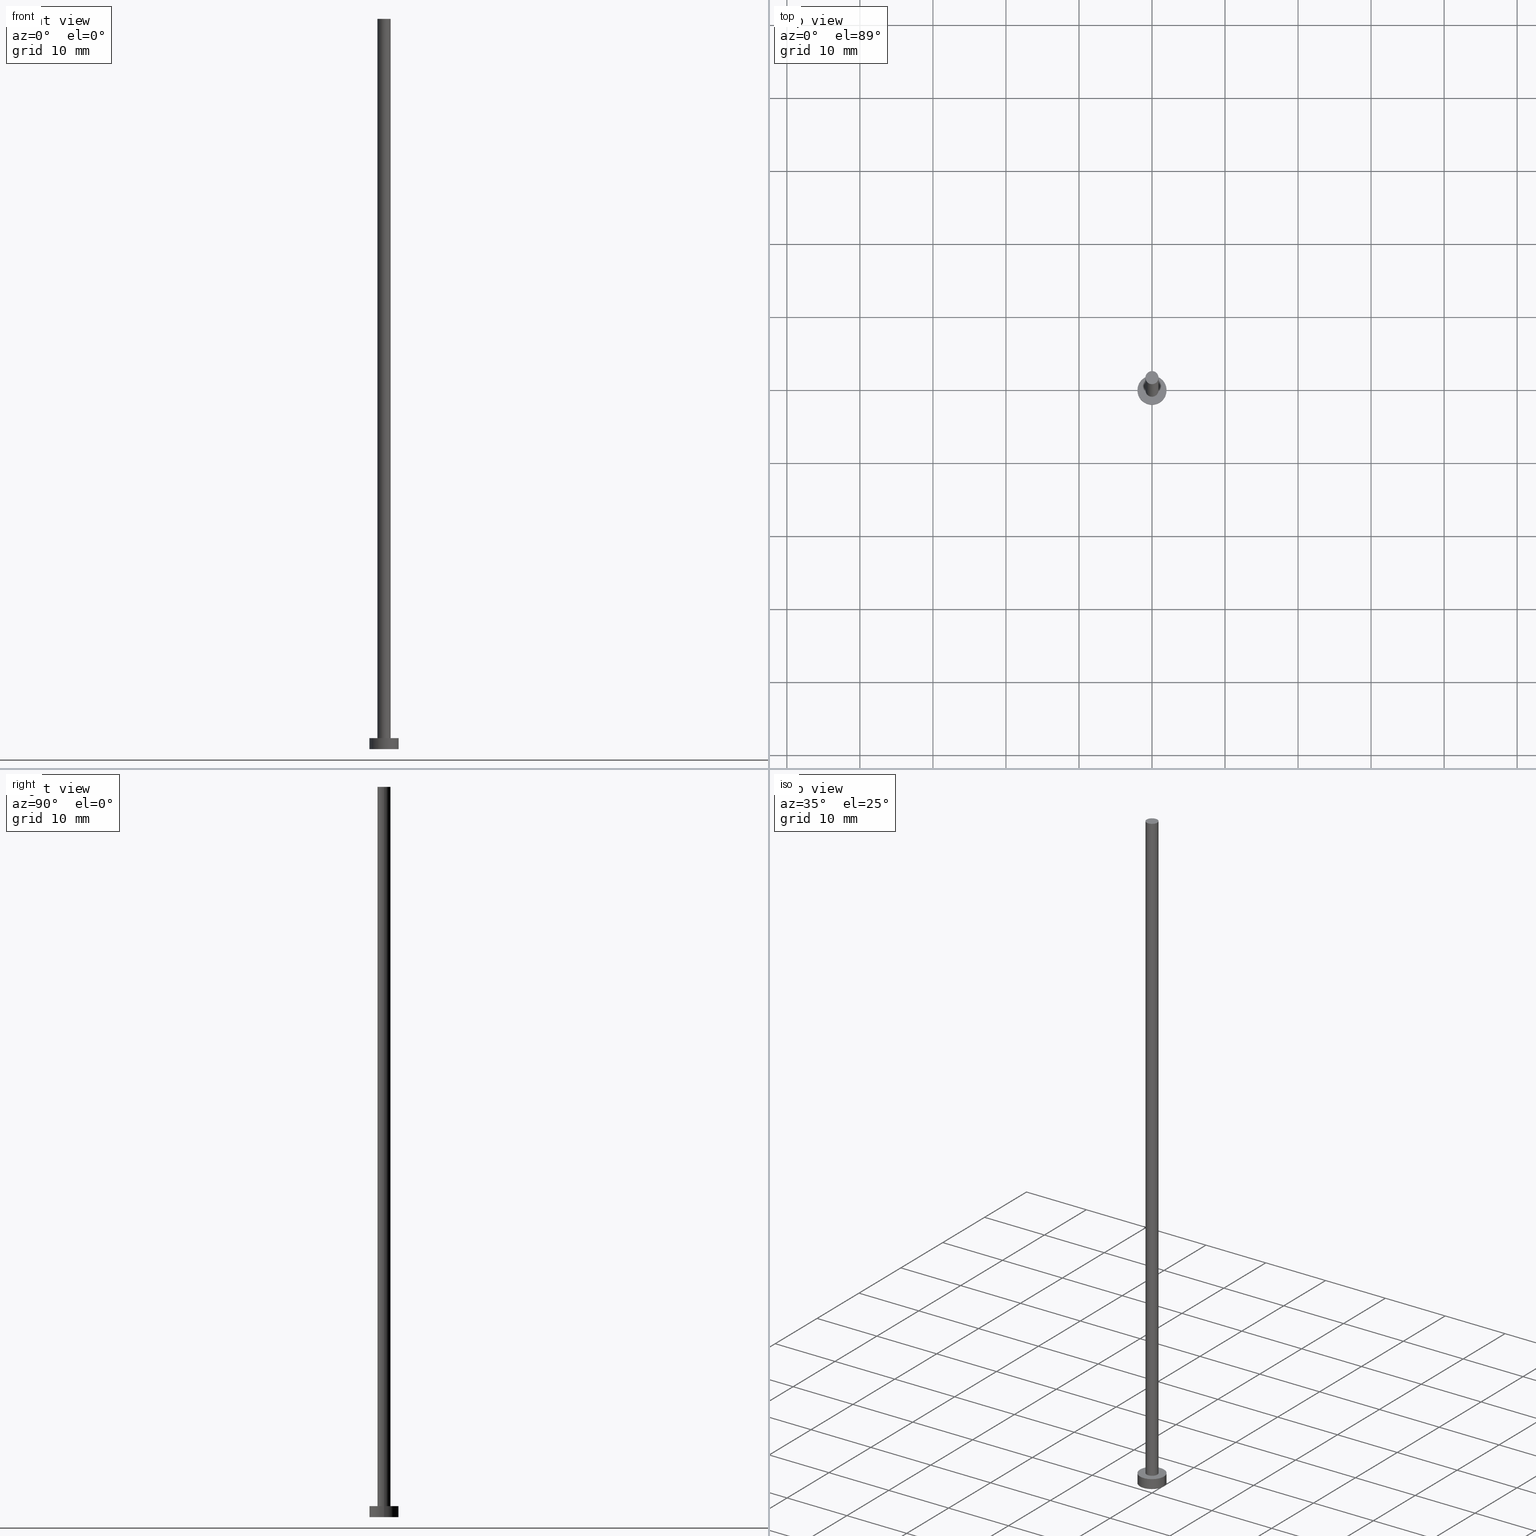
[diagram: canonical four-view strip — front | top / right | iso, engineering-drawing reading convention]
A machine part, canonical four-view strip (front | top / right | iso — engineering-drawing reading convention). The complete STEP part file that produces these views, byte-faithful:
ISO-10303-21;
HEADER;
FILE_DESCRIPTION (( 'STEP AP203' ),
    '1' );
FILE_NAME ('06cb.STEP',
    '2023-02-13T17:16:31',
    ( '' ),
    ( '' ),
    'SwSTEP 2.0',
    'SolidWorks 2019',
    '' );
FILE_SCHEMA (( 'CONFIG_CONTROL_DESIGN' ));
ENDSEC;

DATA;
#1 = DIRECTION ( 'NONE',  ( 0.000000000000000000, 0.000000000000000000, 1.000000000000000000 ) ) ;
#2 = ORGANIZATION ( 'NEUR�EN�', 'NEUR�EN�', '' ) ;
#3 = CC_DESIGN_SECURITY_CLASSIFICATION ( #147, ( #198 ) ) ;
#4 =( NAMED_UNIT ( * ) PLANE_ANGLE_UNIT ( ) SI_UNIT ( $, .RADIAN. ) );
#5 = CALENDAR_DATE ( 2023, 13, 2 ) ;
#6 = EDGE_LOOP ( 'NONE', ( #181, #139 ) ) ;
#7 = APPROVAL ( #229, 'NEUR�EN�' ) ;
#8 = VERTEX_POINT ( 'NONE', #163 ) ;
#9 = CC_DESIGN_APPROVAL ( #14, ( #198 ) ) ;
#10 = EDGE_LOOP ( 'NONE', ( #186, #221, #39, #120 ) ) ;
#11 = AXIS2_PLACEMENT_3D ( 'NONE', #43, #28, #130 ) ;
#12 = SECURITY_CLASSIFICATION_LEVEL ( 'unclassified' ) ;
#13 = CARTESIAN_POINT ( 'NONE',  ( 0.000000000000000000, 0.000000000000000000, 1.500000000000000000 ) ) ;
#14 = APPROVAL ( #77, 'NEUR�EN�' ) ;
#15 = PERSON_AND_ORGANIZATION ( #204, #2 ) ;
#16 = LINE ( 'NONE', #26, #209 ) ;
#17 = DIRECTION ( 'NONE',  ( -0.000000000000000000, -0.000000000000000000, -1.000000000000000000 ) ) ;
#18 = DIRECTION ( 'NONE',  ( 0.000000000000000000, 0.000000000000000000, 1.000000000000000000 ) ) ;
#19 = AXIS2_PLACEMENT_3D ( 'NONE', #113, #67, #137 ) ;
#20 = LINE ( 'NONE', #133, #53 ) ;
#21 = DIRECTION ( 'NONE',  ( 1.000000000000000000, 0.000000000000000000, 0.000000000000000000 ) ) ;
#22 = CIRCLE ( 'NONE', #203, 2.000000000000000000 ) ;
#23 = COORDINATED_UNIVERSAL_TIME_OFFSET ( 1, 0, .AHEAD. ) ;
#24 = APPROVAL_ROLE ( '' ) ;
#25 = CALENDAR_DATE ( 2023, 13, 2 ) ;
#26 = CARTESIAN_POINT ( 'NONE',  ( -2.000000000000000000, 0.000000000000000000, 1.500000000000000000 ) ) ;
#27 = CALENDAR_DATE ( 2023, 13, 2 ) ;
#28 = DIRECTION ( 'NONE',  ( -0.000000000000000000, -0.000000000000000000, -1.000000000000000000 ) ) ;
#29 = LOCAL_TIME ( 18, 16, 31.00000000000000000, #191 ) ;
#30 = DIRECTION ( 'NONE',  ( -0.000000000000000000, -0.000000000000000000, -1.000000000000000000 ) ) ;
#31 = CARTESIAN_POINT ( 'NONE',  ( 0.000000000000000000, 0.000000000000000000, 100.0000000000000000 ) ) ;
#32 = CIRCLE ( 'NONE', #252, 0.9000000000000000222 ) ;
#33 = FACE_OUTER_BOUND ( 'NONE', #51, .T. ) ;
#34 = FACE_OUTER_BOUND ( 'NONE', #10, .T. ) ;
#35 = APPROVAL_DATE_TIME ( #138, #7 ) ;
#36 = ORIENTED_EDGE ( 'NONE', *, *, #219, .F. ) ;
#37 = ORIENTED_EDGE ( 'NONE', *, *, #75, .F. ) ;
#38 =( GEOMETRIC_REPRESENTATION_CONTEXT ( 3 ) GLOBAL_UNCERTAINTY_ASSIGNED_CONTEXT ( ( #110 ) ) GLOBAL_UNIT_ASSIGNED_CONTEXT ( ( #202, #4, #55 ) ) REPRESENTATION_CONTEXT ( 'NONE', 'WORKASPACE' ) );
#39 = ORIENTED_EDGE ( 'NONE', *, *, #199, .T. ) ;
#40 = DATE_AND_TIME ( #123, #29 ) ;
#41 = AXIS2_PLACEMENT_3D ( 'NONE', #238, #217, #90 ) ;
#42 = PERSON_AND_ORGANIZATION ( #204, #2 ) ;
#43 = CARTESIAN_POINT ( 'NONE',  ( 0.000000000000000000, 0.000000000000000000, 100.0000000000000000 ) ) ;
#44 = APPLICATION_CONTEXT ( 'configuration controlled 3d designs of mechanical parts and assemblies' ) ;
#45 = DIRECTION ( 'NONE',  ( 0.000000000000000000, 0.000000000000000000, 1.000000000000000000 ) ) ;
#46 = CIRCLE ( 'NONE', #41, 2.000000000000000000 ) ;
#47 = CARTESIAN_POINT ( 'NONE',  ( 0.000000000000000000, 0.000000000000000000, 1.500000000000000000 ) ) ;
#48 = CARTESIAN_POINT ( 'NONE',  ( 0.000000000000000000, 0.000000000000000000, 100.0000000000000000 ) ) ;
#49 = ORIENTED_EDGE ( 'NONE', *, *, #219, .T. ) ;
#50 = ORIENTED_EDGE ( 'NONE', *, *, #183, .F. ) ;
#51 = EDGE_LOOP ( 'NONE', ( #49, #140 ) ) ;
#52 = PRODUCT_RELATED_PRODUCT_CATEGORY ( 'detail', '', ( #157 ) ) ;
#53 = VECTOR ( 'NONE', #112, 1000.000000000000000 ) ;
#54 = CC_DESIGN_PERSON_AND_ORGANIZATION_ASSIGNMENT ( #72, #251, ( #66 ) ) ;
#55 =( NAMED_UNIT ( * ) SI_UNIT ( $, .STERADIAN. ) SOLID_ANGLE_UNIT ( ) );
#56 = VERTEX_POINT ( 'NONE', #244 ) ;
#57 = DIRECTION ( 'NONE',  ( 1.000000000000000000, 0.000000000000000000, -0.000000000000000000 ) ) ;
#58 = CC_DESIGN_PERSON_AND_ORGANIZATION_ASSIGNMENT ( #81, #125, ( #147 ) ) ;
#59 = PERSON_AND_ORGANIZATION ( #204, #2 ) ;
#60 = EDGE_CURVE ( 'NONE', #160, #8, #16, .T. ) ;
#61 = DIRECTION ( 'NONE',  ( 0.000000000000000000, 0.000000000000000000, 1.000000000000000000 ) ) ;
#62 = CIRCLE ( 'NONE', #92, 0.9000000000000000222 ) ;
#63 = DIRECTION ( 'NONE',  ( -1.000000000000000000, 0.000000000000000000, 0.000000000000000000 ) ) ;
#64 = CYLINDRICAL_SURFACE ( 'NONE', #11, 0.9000000000000000222 ) ;
#65 = FACE_OUTER_BOUND ( 'NONE', #74, .T. ) ;
#66 = PRODUCT_DEFINITION ( 'NEZN�M�', '', #198, #168 ) ;
#67 = DIRECTION ( 'NONE',  ( 0.000000000000000000, 0.000000000000000000, 1.000000000000000000 ) ) ;
#68 = CARTESIAN_POINT ( 'NONE',  ( -0.9000000000000000222, 0.000000000000000000, 100.0000000000000000 ) ) ;
#69 = AXIS2_PLACEMENT_3D ( 'NONE', #214, #17, #88 ) ;
#70 = EDGE_CURVE ( 'NONE', #185, #162, #84, .T. ) ;
#71 = DIRECTION ( 'NONE',  ( 0.000000000000000000, 0.000000000000000000, 1.000000000000000000 ) ) ;
#72 = PERSON_AND_ORGANIZATION ( #204, #2 ) ;
#73 = ORIENTED_EDGE ( 'NONE', *, *, #183, .T. ) ;
#74 = EDGE_LOOP ( 'NONE', ( #165, #36, #73, #101 ) ) ;
#75 = EDGE_CURVE ( 'NONE', #8, #56, #239, .T. ) ;
#76 = ORIENTED_EDGE ( 'NONE', *, *, #194, .F. ) ;
#77 = APPROVAL_STATUS ( 'not_yet_approved' ) ;
#78 = ORIENTED_EDGE ( 'NONE', *, *, #141, .T. ) ;
#79 = EDGE_CURVE ( 'NONE', #162, #182, #62, .T. ) ;
#80 = AXIS2_PLACEMENT_3D ( 'NONE', #254, #1, #152 ) ;
#81 = PERSON_AND_ORGANIZATION ( #204, #2 ) ;
#82 = DIRECTION ( 'NONE',  ( 0.000000000000000000, 0.000000000000000000, 1.000000000000000000 ) ) ;
#83 = APPROVAL_DATE_TIME ( #220, #109 ) ;
#84 = LINE ( 'NONE', #111, #91 ) ;
#85 = PERSON_AND_ORGANIZATION_ROLE ( 'creator' ) ;
#86 = CIRCLE ( 'NONE', #241, 0.9000000000000000222 ) ;
#87 = DIRECTION ( 'NONE',  ( -0.000000000000000000, -0.000000000000000000, -1.000000000000000000 ) ) ;
#88 = DIRECTION ( 'NONE',  ( -1.000000000000000000, 0.000000000000000000, 0.000000000000000000 ) ) ;
#89 = ADVANCED_FACE ( 'NONE', ( #65 ), #64, .T. ) ;
#90 = DIRECTION ( 'NONE',  ( 1.000000000000000000, 0.000000000000000000, 0.000000000000000000 ) ) ;
#91 = VECTOR ( 'NONE', #30, 1000.000000000000000 ) ;
#92 = AXIS2_PLACEMENT_3D ( 'NONE', #128, #166, #253 ) ;
#93 = AXIS2_PLACEMENT_3D ( 'NONE', #170, #61, #250 ) ;
#94 = CC_DESIGN_DATE_AND_TIME_ASSIGNMENT ( #107, #146, ( #147 ) ) ;
#95 = DIRECTION ( 'NONE',  ( 1.000000000000000000, 0.000000000000000000, 0.000000000000000000 ) ) ;
#96 = ADVANCED_FACE ( 'NONE', ( #228 ), #193, .T. ) ;
#97 = DIRECTION ( 'NONE',  ( 1.000000000000000000, 0.000000000000000000, 0.000000000000000000 ) ) ;
#98 = ADVANCED_FACE ( 'NONE', ( #148 ), #171, .T. ) ;
#99 = DIRECTION ( 'NONE',  ( -1.000000000000000000, 0.000000000000000000, 0.000000000000000000 ) ) ;
#100 = APPLICATION_PROTOCOL_DEFINITION ( 'international standard', 'config_control_design', 1994, #44 ) ;
#101 = ORIENTED_EDGE ( 'NONE', *, *, #231, .T. ) ;
#102 = CC_DESIGN_DATE_AND_TIME_ASSIGNMENT ( #167, #225, ( #66 ) ) ;
#103 = ORIENTED_EDGE ( 'NONE', *, *, #60, .T. ) ;
#104 = EDGE_LOOP ( 'NONE', ( #242, #208, #144, #50 ) ) ;
#105 = APPROVAL_STATUS ( 'not_yet_approved' ) ;
#106 = PERSON_AND_ORGANIZATION_ROLE ( 'design_owner' ) ;
#107 = DATE_AND_TIME ( #5, #245 ) ;
#108 = CARTESIAN_POINT ( 'NONE',  ( 0.000000000000000000, 0.000000000000000000, 0.000000000000000000 ) ) ;
#109 = APPROVAL ( #105, 'NEUR�EN�' ) ;
#110 = UNCERTAINTY_MEASURE_WITH_UNIT (LENGTH_MEASURE( 1.000000000000000082E-05 ), #202, 'distance_accuracy_value', 'NONE');
#111 = CARTESIAN_POINT ( 'NONE',  ( 0.9000000000000000222, 1.102182119232617788E-16, 100.0000000000000000 ) ) ;
#112 = DIRECTION ( 'NONE',  ( -0.000000000000000000, -0.000000000000000000, -1.000000000000000000 ) ) ;
#113 = CARTESIAN_POINT ( 'NONE',  ( 0.000000000000000000, 0.000000000000000000, 0.000000000000000000 ) ) ;
#114 = AXIS2_PLACEMENT_3D ( 'NONE', #215, #71, #97 ) ;
#115 = DIRECTION ( 'NONE',  ( 0.000000000000000000, 0.000000000000000000, 1.000000000000000000 ) ) ;
#116 = CARTESIAN_POINT ( 'NONE',  ( 0.000000000000000000, 0.000000000000000000, 1.500000000000000000 ) ) ;
#117 = SHAPE_DEFINITION_REPRESENTATION ( #149, #190 ) ;
#118 = ORIENTED_EDGE ( 'NONE', *, *, #145, .F. ) ;
#119 = VECTOR ( 'NONE', #175, 1000.000000000000000 ) ;
#120 = ORIENTED_EDGE ( 'NONE', *, *, #60, .F. ) ;
#121 = MECHANICAL_CONTEXT ( 'NONE', #44, 'mechanical' ) ;
#122 = CC_DESIGN_PERSON_AND_ORGANIZATION_ASSIGNMENT ( #59, #85, ( #198 ) ) ;
#123 = CALENDAR_DATE ( 2023, 13, 2 ) ;
#124 = ORIENTED_EDGE ( 'NONE', *, *, #75, .T. ) ;
#125 = PERSON_AND_ORGANIZATION_ROLE ( 'classification_officer' ) ;
#126 = PLANE ( 'NONE',  #161 ) ;
#127 = COORDINATED_UNIVERSAL_TIME_OFFSET ( 1, 0, .AHEAD. ) ;
#128 = CARTESIAN_POINT ( 'NONE',  ( 0.000000000000000000, 0.000000000000000000, 1.500000000000000000 ) ) ;
#129 = ADVANCED_FACE ( 'NONE', ( #233, #132 ), #126, .T. ) ;
#130 = DIRECTION ( 'NONE',  ( -1.000000000000000000, 0.000000000000000000, 0.000000000000000000 ) ) ;
#131 = APPROVAL_PERSON_ORGANIZATION ( #15, #7, #159 ) ;
#132 = FACE_OUTER_BOUND ( 'NONE', #247, .T. ) ;
#133 = CARTESIAN_POINT ( 'NONE',  ( -0.9000000000000000222, 0.000000000000000000, 100.0000000000000000 ) ) ;
#134 = PLANE ( 'NONE',  #19 ) ;
#135 = ADVANCED_FACE ( 'NONE', ( #213 ), #134, .F. ) ;
#136 = AXIS2_PLACEMENT_3D ( 'NONE', #189, #87, #63 ) ;
#137 = DIRECTION ( 'NONE',  ( 1.000000000000000000, 0.000000000000000000, -0.000000000000000000 ) ) ;
#138 = DATE_AND_TIME ( #27, #212 ) ;
#139 = ORIENTED_EDGE ( 'NONE', *, *, #79, .F. ) ;
#140 = ORIENTED_EDGE ( 'NONE', *, *, #201, .T. ) ;
#141 = EDGE_CURVE ( 'NONE', #223, #160, #150, .T. ) ;
#142 = APPROVAL_PERSON_ORGANIZATION ( #42, #109, #24 ) ;
#143 = PERSON_AND_ORGANIZATION ( #204, #2 ) ;
#144 = ORIENTED_EDGE ( 'NONE', *, *, #79, .T. ) ;
#145 = EDGE_CURVE ( 'NONE', #160, #223, #22, .T. ) ;
#146 = DATE_TIME_ROLE ( 'classification_date' ) ;
#147 = SECURITY_CLASSIFICATION ( '', '', #12 ) ;
#148 = FACE_OUTER_BOUND ( 'NONE', #104, .T. ) ;
#149 = PRODUCT_DEFINITION_SHAPE ( 'NONE', 'NONE',  #66 ) ;
#150 = CIRCLE ( 'NONE', #114, 2.000000000000000000 ) ;
#151 = MANIFOLD_SOLID_BREP ( 'P�idat vysunut�m3', #172 ) ;
#152 = DIRECTION ( 'NONE',  ( 1.000000000000000000, 0.000000000000000000, -0.000000000000000000 ) ) ;
#153 = PLANE ( 'NONE',  #80 ) ;
#154 = CYLINDRICAL_SURFACE ( 'NONE', #178, 2.000000000000000000 ) ;
#155 = APPLICATION_CONTEXT ( 'configuration controlled 3d designs of mechanical parts and assemblies' ) ;
#156 = CARTESIAN_POINT ( 'NONE',  ( 0.9000000000000000222, 1.102182119232617788E-16, 100.0000000000000000 ) ) ;
#157 = PRODUCT ( '06cb', '06cb', '', ( #121 ) ) ;
#158 = CC_DESIGN_PERSON_AND_ORGANIZATION_ASSIGNMENT ( #227, #106, ( #157 ) ) ;
#159 = APPROVAL_ROLE ( '' ) ;
#160 = VERTEX_POINT ( 'NONE', #200 ) ;
#161 = AXIS2_PLACEMENT_3D ( 'NONE', #13, #82, #57 ) ;
#162 = VERTEX_POINT ( 'NONE', #216 ) ;
#163 = CARTESIAN_POINT ( 'NONE',  ( -2.000000000000000000, 0.000000000000000000, 0.000000000000000000 ) ) ;
#164 = APPROVAL_ROLE ( '' ) ;
#165 = ORIENTED_EDGE ( 'NONE', *, *, #70, .F. ) ;
#166 = DIRECTION ( 'NONE',  ( 0.000000000000000000, 0.000000000000000000, 1.000000000000000000 ) ) ;
#167 = DATE_AND_TIME ( #180, #205 ) ;
#168 = DESIGN_CONTEXT ( 'detailed design', #155, 'design' ) ;
#169 = CC_DESIGN_APPROVAL ( #109, ( #66 ) ) ;
#170 = CARTESIAN_POINT ( 'NONE',  ( 0.000000000000000000, 0.000000000000000000, 0.000000000000000000 ) ) ;
#171 = CYLINDRICAL_SURFACE ( 'NONE', #69, 0.9000000000000000222 ) ;
#172 = CLOSED_SHELL ( 'NONE', ( #98, #224, #96, #129, #135, #89, #236 ) ) ;
#173 = DIRECTION ( 'NONE',  ( 1.000000000000000000, 0.000000000000000000, 0.000000000000000000 ) ) ;
#174 = LINE ( 'NONE', #196, #119 ) ;
#175 = DIRECTION ( 'NONE',  ( -0.000000000000000000, -0.000000000000000000, -1.000000000000000000 ) ) ;
#176 = CC_DESIGN_PERSON_AND_ORGANIZATION_ASSIGNMENT ( #188, #249, ( #198 ) ) ;
#177 = CARTESIAN_POINT ( 'NONE',  ( -0.9000000000000000222, 0.000000000000000000, 1.500000000000000000 ) ) ;
#178 = AXIS2_PLACEMENT_3D ( 'NONE', #116, #235, #99 ) ;
#179 = CC_DESIGN_APPROVAL ( #7, ( #147 ) ) ;
#180 = CALENDAR_DATE ( 2023, 13, 2 ) ;
#181 = ORIENTED_EDGE ( 'NONE', *, *, #231, .F. ) ;
#182 = VERTEX_POINT ( 'NONE', #177 ) ;
#183 = EDGE_CURVE ( 'NONE', #226, #182, #20, .T. ) ;
#184 = LOCAL_TIME ( 18, 16, 31.00000000000000000, #187 ) ;
#185 = VERTEX_POINT ( 'NONE', #156 ) ;
#186 = ORIENTED_EDGE ( 'NONE', *, *, #141, .F. ) ;
#187 = COORDINATED_UNIVERSAL_TIME_OFFSET ( 1, 0, .AHEAD. ) ;
#188 = PERSON_AND_ORGANIZATION ( #204, #2 ) ;
#189 = CARTESIAN_POINT ( 'NONE',  ( 0.000000000000000000, 0.000000000000000000, 1.500000000000000000 ) ) ;
#190 = ADVANCED_BREP_SHAPE_REPRESENTATION ( '06cb', ( #151, #195 ), #38 ) ;
#191 = COORDINATED_UNIVERSAL_TIME_OFFSET ( 1, 0, .AHEAD. ) ;
#192 = APPLICATION_PROTOCOL_DEFINITION ( 'international standard', 'config_control_design', 1994, #155 ) ;
#193 = CYLINDRICAL_SURFACE ( 'NONE', #136, 2.000000000000000000 ) ;
#194 = EDGE_CURVE ( 'NONE', #223, #56, #174, .T. ) ;
#195 = AXIS2_PLACEMENT_3D ( 'NONE', #108, #248, #246 ) ;
#196 = CARTESIAN_POINT ( 'NONE',  ( 2.000000000000000000, 2.449293598294706414E-16, 1.500000000000000000 ) ) ;
#197 = CARTESIAN_POINT ( 'NONE',  ( 0.000000000000000000, 0.000000000000000000, 1.500000000000000000 ) ) ;
#198 = PRODUCT_DEFINITION_FORMATION_WITH_SPECIFIED_SOURCE ( 'LIBOVOLN�', '', #157, .NOT_KNOWN. ) ;
#199 = EDGE_CURVE ( 'NONE', #56, #8, #46, .T. ) ;
#200 = CARTESIAN_POINT ( 'NONE',  ( -2.000000000000000000, 0.000000000000000000, 1.500000000000000000 ) ) ;
#201 = EDGE_CURVE ( 'NONE', #185, #226, #32, .T. ) ;
#202 =( LENGTH_UNIT ( ) NAMED_UNIT ( * ) SI_UNIT ( .MILLI., .METRE. ) );
#203 = AXIS2_PLACEMENT_3D ( 'NONE', #197, #45, #95 ) ;
#204 = PERSON ( 'NEUR�EN�', 'NEUR�EN�', 'NEUR�EN�', ('NEUR�EN�'), ('NEUR�EN�'), ('NEUR�EN�') ) ;
#205 = LOCAL_TIME ( 18, 16, 31.00000000000000000, #23 ) ;
#206 = ORIENTED_EDGE ( 'NONE', *, *, #145, .T. ) ;
#207 = APPROVAL_DATE_TIME ( #40, #14 ) ;
#208 = ORIENTED_EDGE ( 'NONE', *, *, #70, .T. ) ;
#209 = VECTOR ( 'NONE', #232, 1000.000000000000000 ) ;
#210 = COORDINATED_UNIVERSAL_TIME_OFFSET ( 1, 0, .AHEAD. ) ;
#211 = AXIS2_PLACEMENT_3D ( 'NONE', #48, #18, #21 ) ;
#212 = LOCAL_TIME ( 18, 16, 31.00000000000000000, #127 ) ;
#213 = FACE_OUTER_BOUND ( 'NONE', #240, .T. ) ;
#214 = CARTESIAN_POINT ( 'NONE',  ( 0.000000000000000000, 0.000000000000000000, 100.0000000000000000 ) ) ;
#215 = CARTESIAN_POINT ( 'NONE',  ( 0.000000000000000000, 0.000000000000000000, 1.500000000000000000 ) ) ;
#216 = CARTESIAN_POINT ( 'NONE',  ( 0.9000000000000000222, 1.102182119232617788E-16, 1.500000000000000000 ) ) ;
#217 = DIRECTION ( 'NONE',  ( 0.000000000000000000, 0.000000000000000000, 1.000000000000000000 ) ) ;
#218 = DIRECTION ( 'NONE',  ( 0.000000000000000000, 0.000000000000000000, 1.000000000000000000 ) ) ;
#219 = EDGE_CURVE ( 'NONE', #226, #185, #230, .T. ) ;
#220 = DATE_AND_TIME ( #25, #184 ) ;
#221 = ORIENTED_EDGE ( 'NONE', *, *, #194, .T. ) ;
#222 = EDGE_LOOP ( 'NONE', ( #76, #118, #103, #124 ) ) ;
#223 = VERTEX_POINT ( 'NONE', #234 ) ;
#224 = ADVANCED_FACE ( 'NONE', ( #34 ), #154, .T. ) ;
#225 = DATE_TIME_ROLE ( 'creation_date' ) ;
#226 = VERTEX_POINT ( 'NONE', #68 ) ;
#227 = PERSON_AND_ORGANIZATION ( #204, #2 ) ;
#228 = FACE_OUTER_BOUND ( 'NONE', #222, .T. ) ;
#229 = APPROVAL_STATUS ( 'not_yet_approved' ) ;
#230 = CIRCLE ( 'NONE', #211, 0.9000000000000000222 ) ;
#231 = EDGE_CURVE ( 'NONE', #182, #162, #86, .T. ) ;
#232 = DIRECTION ( 'NONE',  ( -0.000000000000000000, -0.000000000000000000, -1.000000000000000000 ) ) ;
#233 = FACE_BOUND ( 'NONE', #6, .T. ) ;
#234 = CARTESIAN_POINT ( 'NONE',  ( 2.000000000000000000, 2.449293598294706414E-16, 1.500000000000000000 ) ) ;
#235 = DIRECTION ( 'NONE',  ( -0.000000000000000000, -0.000000000000000000, -1.000000000000000000 ) ) ;
#236 = ADVANCED_FACE ( 'NONE', ( #33 ), #153, .T. ) ;
#237 = APPROVAL_PERSON_ORGANIZATION ( #143, #14, #164 ) ;
#238 = CARTESIAN_POINT ( 'NONE',  ( 0.000000000000000000, 0.000000000000000000, 0.000000000000000000 ) ) ;
#239 = CIRCLE ( 'NONE', #93, 2.000000000000000000 ) ;
#240 = EDGE_LOOP ( 'NONE', ( #37, #243 ) ) ;
#241 = AXIS2_PLACEMENT_3D ( 'NONE', #47, #218, #173 ) ;
#242 = ORIENTED_EDGE ( 'NONE', *, *, #201, .F. ) ;
#243 = ORIENTED_EDGE ( 'NONE', *, *, #199, .F. ) ;
#244 = CARTESIAN_POINT ( 'NONE',  ( 2.000000000000000000, 2.449293598294706414E-16, 0.000000000000000000 ) ) ;
#245 = LOCAL_TIME ( 18, 16, 31.00000000000000000, #210 ) ;
#246 = DIRECTION ( 'NONE',  ( 1.000000000000000000, 0.000000000000000000, 0.000000000000000000 ) ) ;
#247 = EDGE_LOOP ( 'NONE', ( #206, #78 ) ) ;
#248 = DIRECTION ( 'NONE',  ( 0.000000000000000000, 0.000000000000000000, 1.000000000000000000 ) ) ;
#249 = PERSON_AND_ORGANIZATION_ROLE ( 'design_supplier' ) ;
#250 = DIRECTION ( 'NONE',  ( 1.000000000000000000, 0.000000000000000000, 0.000000000000000000 ) ) ;
#251 = PERSON_AND_ORGANIZATION_ROLE ( 'creator' ) ;
#252 = AXIS2_PLACEMENT_3D ( 'NONE', #31, #115, #255 ) ;
#253 = DIRECTION ( 'NONE',  ( 1.000000000000000000, 0.000000000000000000, 0.000000000000000000 ) ) ;
#254 = CARTESIAN_POINT ( 'NONE',  ( 0.000000000000000000, 0.000000000000000000, 100.0000000000000000 ) ) ;
#255 = DIRECTION ( 'NONE',  ( 1.000000000000000000, 0.000000000000000000, 0.000000000000000000 ) ) ;
ENDSEC;
END-ISO-10303-21;
